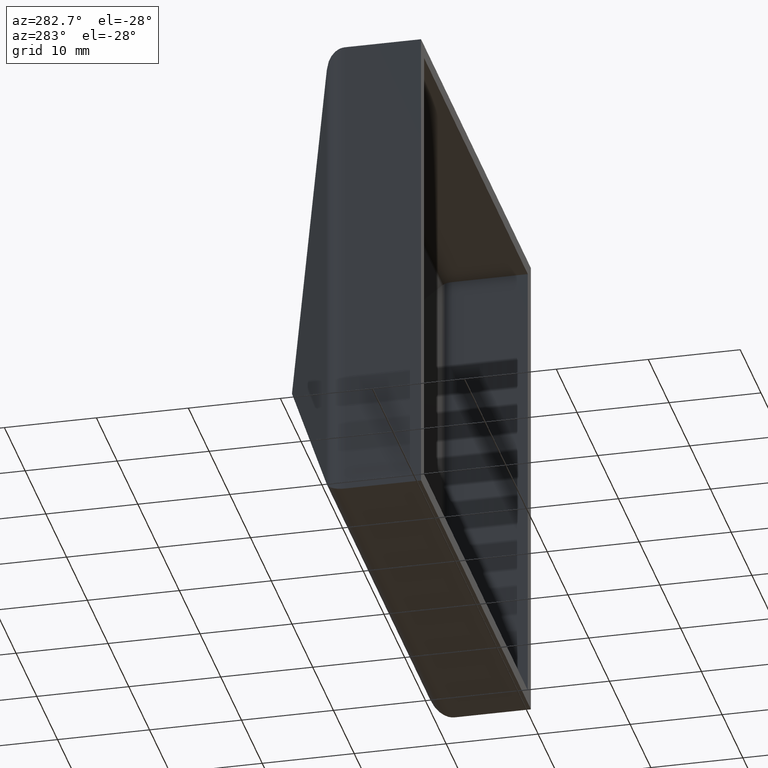
[diagram: clean part render]
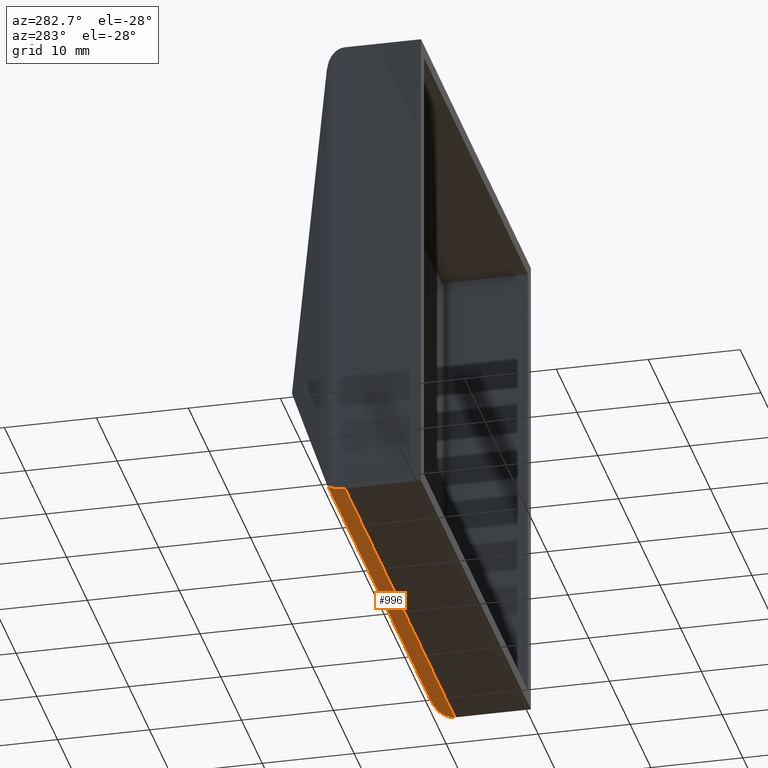
[diagram: same view with one face highlighted and labeled with its STEP entity id]
A machine part, auxiliary view. The second image highlights one B-rep face of the part: STEP entity #996.
In plain terms, the highlighted cylindrical surface (edge-blend (fillet) strip) has radius 2.5 mm, axis along (1, -0, -0).
Its self-contained STEP definition (entity closure, byte-faithful):
#463 =( BOUNDED_CURVE ( )  B_SPLINE_CURVE ( 3, ( #10211, #11243, #6084, #7208 ),
 .UNSPECIFIED., .F., .T. ) 
 B_SPLINE_CURVE_WITH_KNOTS ( ( 4, 4 ),
 ( 3.141592653589793100, 4.351324550702120300 ),
 .UNSPECIFIED. ) 
 CURVE ( )  GEOMETRIC_REPRESENTATION_ITEM ( )  RATIONAL_B_SPLINE_CURVE ( ( 1.000000000000000000, 0.8817188890797190700, 0.8817188890797190700, 1.000000000000000000 ) ) 
 REPRESENTATION_ITEM ( '' )  );
#857 = CARTESIAN_POINT ( 'NONE',  ( 26.50000000000000700, 8.271739631613602500, -26.50000000000000700 ) ) ;
#971 = AXIS2_PLACEMENT_3D ( 'NONE', #1158, #12405, #9252 ) ;
#996 = ADVANCED_FACE ( 'NONE', ( #3883 ), #11368, .T. ) ;
#1158 = CARTESIAN_POINT ( 'NONE',  ( -26.50000000000002800, 8.271739631613602500, -23.99999999999998600 ) ) ;
#1266 = EDGE_LOOP ( 'NONE', ( #5953, #8950, #1689, #8470 ) ) ;
#1689 = ORIENTED_EDGE ( 'NONE', *, *, #2202, .T. ) ;
#1938 = CARTESIAN_POINT ( 'NONE',  ( 24.88317557470180200, 10.61054293763361000, -24.88317557470182000 ) ) ;
#2202 = EDGE_CURVE ( 'NONE', #5106, #9958, #11868, .T. ) ;
#2949 = LINE ( 'NONE', #3768, #3746 ) ;
#3603 = CARTESIAN_POINT ( 'NONE',  ( -24.88317557470180900, 10.61054293763361000, -24.88317557470180200 ) ) ;
#3746 = VECTOR ( 'NONE', #11937, 1000.000000000000000 ) ;
#3760 = CARTESIAN_POINT ( 'NONE',  ( 25.88876042945852500, 10.23081541641571900, -25.88876042945852900 ) ) ;
#3768 = CARTESIAN_POINT ( 'NONE',  ( -26.50000000000002800, 10.61054293763361000, -24.88317557470180200 ) ) ;
#3883 = FACE_OUTER_BOUND ( 'NONE', #1266, .T. ) ;
#3884 = CARTESIAN_POINT ( 'NONE',  ( -26.50000000000002800, 8.271739631613602500, -26.49999999999998600 ) ) ;
#5106 = VERTEX_POINT ( 'NONE', #1938 ) ;
#5430 = EDGE_CURVE ( 'NONE', #11667, #11670, #463, .T. ) ;
#5953 = ORIENTED_EDGE ( 'NONE', *, *, #5430, .T. ) ;
#6035 = DIRECTION ( 'NONE',  ( 1.000000000000000000, -0.0000000000000000000, -4.440892098500625200E-016 ) ) ;
#6084 = CARTESIAN_POINT ( 'NONE',  ( -25.88876042945852200, 10.23081541641571600, -25.88876042945851100 ) ) ;
#6830 = CARTESIAN_POINT ( 'NONE',  ( 24.88317557470180200, 10.61054293763361000, -24.88317557470182000 ) ) ;
#6950 = CARTESIAN_POINT ( 'NONE',  ( 26.50000000000000700, 8.271739631613602500, -26.50000000000000700 ) ) ;
#7208 = CARTESIAN_POINT ( 'NONE',  ( -24.88317557470180900, 10.61054293763361000, -24.88317557470180200 ) ) ;
#7760 = CARTESIAN_POINT ( 'NONE',  ( -26.50000000000002800, 8.271739631613602500, -26.49999999999998600 ) ) ;
#7869 = CARTESIAN_POINT ( 'NONE',  ( 26.50000000000000000, 9.346632133441746100, -26.50000000000001100 ) ) ;
#8073 = EDGE_CURVE ( 'NONE', #11667, #9958, #9084, .T. ) ;
#8470 = ORIENTED_EDGE ( 'NONE', *, *, #8073, .F. ) ;
#8752 = VECTOR ( 'NONE', #6035, 1000.000000000000000 ) ;
#8950 = ORIENTED_EDGE ( 'NONE', *, *, #11204, .T. ) ;
#9084 = LINE ( 'NONE', #3884, #8752 ) ;
#9252 = DIRECTION ( 'NONE',  ( 0.0000000000000000000, 0.0000000000000000000, -1.000000000000000000 ) ) ;
#9958 = VERTEX_POINT ( 'NONE', #6950 ) ;
#10211 = CARTESIAN_POINT ( 'NONE',  ( -26.50000000000002800, 8.271739631613602500, -26.49999999999998600 ) ) ;
#11204 = EDGE_CURVE ( 'NONE', #11670, #5106, #2949, .T. ) ;
#11243 = CARTESIAN_POINT ( 'NONE',  ( -26.50000000000000000, 9.346632133441742600, -26.49999999999998600 ) ) ;
#11368 = CYLINDRICAL_SURFACE ( 'NONE', #971, 2.499999999999998700 ) ;
#11667 = VERTEX_POINT ( 'NONE', #7760 ) ;
#11670 = VERTEX_POINT ( 'NONE', #3603 ) ;
#11868 =( BOUNDED_CURVE ( )  B_SPLINE_CURVE ( 3, ( #6830, #3760, #7869, #857 ),
 .UNSPECIFIED., .F., .F. ) 
 B_SPLINE_CURVE_WITH_KNOTS ( ( 4, 4 ),
 ( 1.931860756477462400, 3.141592653589793100 ),
 .UNSPECIFIED. ) 
 CURVE ( )  GEOMETRIC_REPRESENTATION_ITEM ( )  RATIONAL_B_SPLINE_CURVE ( ( 1.000000000000000000, 0.8817188890797185200, 0.8817188890797185200, 1.000000000000000000 ) ) 
 REPRESENTATION_ITEM ( '' )  );
#11937 = DIRECTION ( 'NONE',  ( 1.000000000000000000, -0.0000000000000000000, -4.440892098500625200E-016 ) ) ;
#12405 = DIRECTION ( 'NONE',  ( 1.000000000000000000, -0.0000000000000000000, -4.440892098500625200E-016 ) ) ;